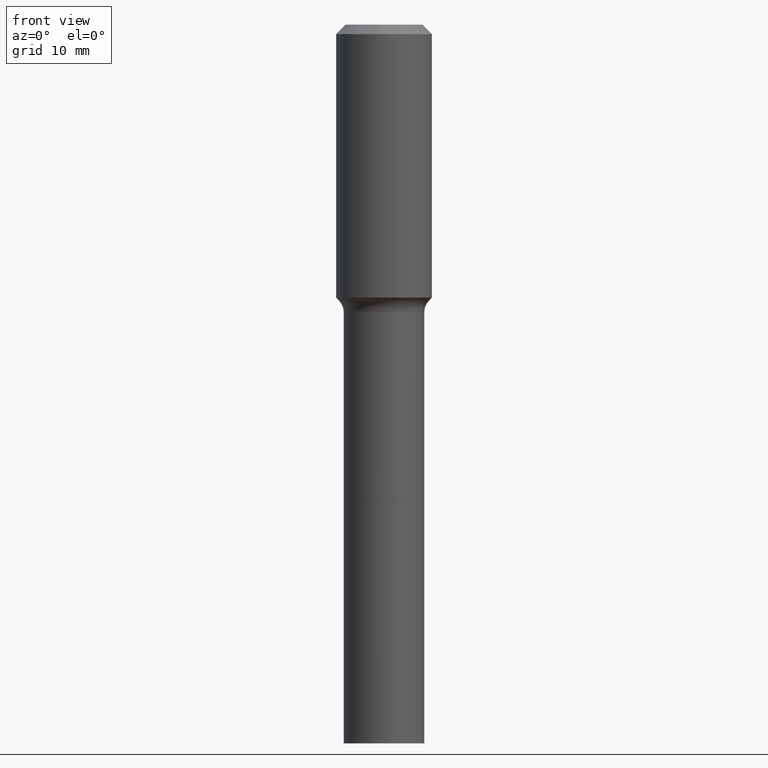
[diagram: clean part render]
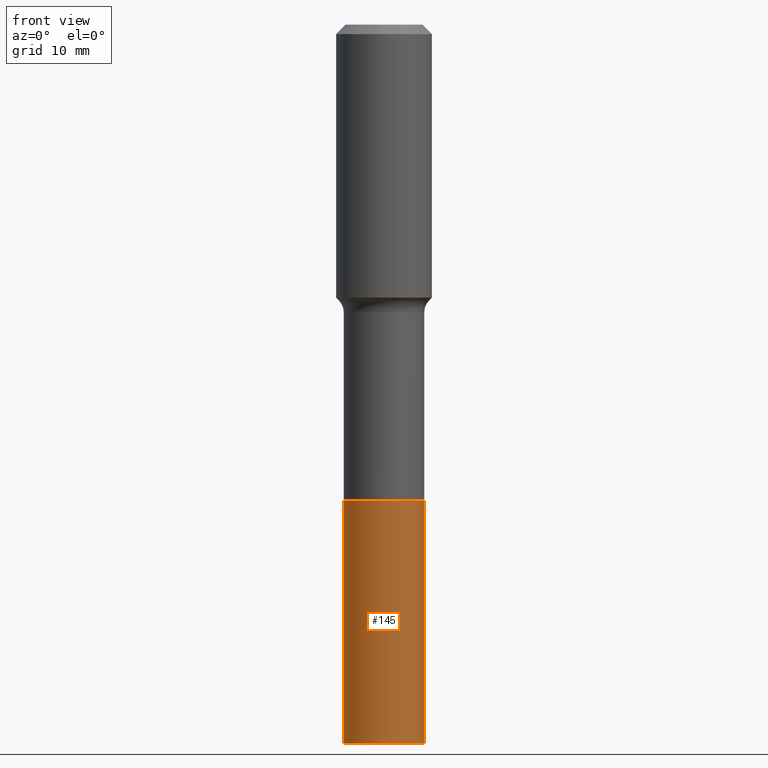
[diagram: same view with one face highlighted and labeled with its STEP entity id]
A machine part, front view. The second image highlights one B-rep face of the part: STEP entity #145.
In plain terms, the highlighted cylindrical surface (partial cylindrical patch) has radius 5.0419 mm, axis along (-0, 0, 1).
Its self-contained STEP definition (entity closure, byte-faithful):
#15 = LINE ( 'NONE', #371, #478 ) ;
#18 = AXIS2_PLACEMENT_3D ( 'NONE', #407, #51, #127 ) ;
#26 = VERTEX_POINT ( 'NONE', #38 ) ;
#36 = VERTEX_POINT ( 'NONE', #470 ) ;
#38 = CARTESIAN_POINT ( 'NONE',  ( -0.1985000000000000098, -8.871286916141496321E-15, -2.346299999999999830 ) ) ;
#51 = DIRECTION ( 'NONE',  ( -2.445468806185136597E-29, 3.491481338843145583E-15, 1.000000000000000000 ) ) ;
#80 = VERTEX_POINT ( 'NONE', #157 ) ;
#97 = CARTESIAN_POINT ( 'NONE',  ( 8.665029620955794069E-29, -1.237136582792291707E-14, -3.543299999999999894 ) ) ;
#109 = ORIENTED_EDGE ( 'NONE', *, *, #124, .F. ) ;
#124 = EDGE_CURVE ( 'NONE', #474, #26, #462, .T. ) ;
#127 = DIRECTION ( 'NONE',  ( 1.000000000000000000, -6.982962677686271444E-15, 0.000000000000000000 ) ) ;
#145 = ADVANCED_FACE ( 'NONE', ( #459 ), #220, .T. ) ;
#150 = CIRCLE ( 'NONE', #18, 0.1985000000000000098 ) ;
#157 = CARTESIAN_POINT ( 'NONE',  ( 0.1985000000000000098, -1.375748391944363982E-14, -3.543299999999999894 ) ) ;
#189 = ORIENTED_EDGE ( 'NONE', *, *, #364, .T. ) ;
#191 = AXIS2_PLACEMENT_3D ( 'NONE', #97, #209, #274 ) ;
#192 = EDGE_LOOP ( 'NONE', ( #109, #189, #510, #221 ) ) ;
#206 = CIRCLE ( 'NONE', #191, 0.1985000000000000098 ) ;
#209 = DIRECTION ( 'NONE',  ( -2.445468806185136597E-29, 3.491481338843145583E-15, 1.000000000000000000 ) ) ;
#220 = CYLINDRICAL_SURFACE ( 'NONE', #449, 0.1985000000000000098 ) ;
#221 = ORIENTED_EDGE ( 'NONE', *, *, #392, .F. ) ;
#230 = EDGE_CURVE ( 'NONE', #80, #36, #15, .T. ) ;
#274 = DIRECTION ( 'NONE',  ( 1.000000000000000000, -6.982962677686261189E-15, 0.000000000000000000 ) ) ;
#302 = CARTESIAN_POINT ( 'NONE',  ( -0.1985000000000000098, -6.781635334843872141E-15, -2.346299999999999830 ) ) ;
#319 = DIRECTION ( 'NONE',  ( -2.445468806185136877E-29, 3.491481338843145188E-15, 1.000000000000000000 ) ) ;
#332 = DIRECTION ( 'NONE',  ( 1.000000000000000000, -6.982962677686271444E-15, 0.000000000000000000 ) ) ;
#364 = EDGE_CURVE ( 'NONE', #474, #80, #206, .T. ) ;
#371 = CARTESIAN_POINT ( 'NONE',  ( 0.1985000000000000098, -9.578180756848396189E-15, -2.346299999999999830 ) ) ;
#382 = CARTESIAN_POINT ( 'NONE',  ( 5.737803459952185617E-29, -8.192062665327671869E-15, -2.346299999999999830 ) ) ;
#392 = EDGE_CURVE ( 'NONE', #26, #36, #150, .T. ) ;
#407 = CARTESIAN_POINT ( 'NONE',  ( 5.737803459952185617E-29, -8.192062665327671869E-15, -2.346299999999999830 ) ) ;
#449 = AXIS2_PLACEMENT_3D ( 'NONE', #382, #469, #332 ) ;
#459 = FACE_OUTER_BOUND ( 'NONE', #192, .T. ) ;
#462 = LINE ( 'NONE', #302, #483 ) ;
#463 = DIRECTION ( 'NONE',  ( -2.445468806185136877E-29, 3.491481338843145188E-15, 1.000000000000000000 ) ) ;
#469 = DIRECTION ( 'NONE',  ( -2.445468806185136597E-29, 3.491481338843145583E-15, 1.000000000000000000 ) ) ;
#470 = CARTESIAN_POINT ( 'NONE',  ( 0.1985000000000000098, -9.578180756848396189E-15, -2.346299999999999830 ) ) ;
#474 = VERTEX_POINT ( 'NONE', #502 ) ;
#478 = VECTOR ( 'NONE', #319, 39.37007874015748143 ) ;
#483 = VECTOR ( 'NONE', #463, 39.37007874015748143 ) ;
#502 = CARTESIAN_POINT ( 'NONE',  ( -0.1985000000000000098, -8.871286916141496321E-15, -3.543299999999999894 ) ) ;
#510 = ORIENTED_EDGE ( 'NONE', *, *, #230, .T. ) ;